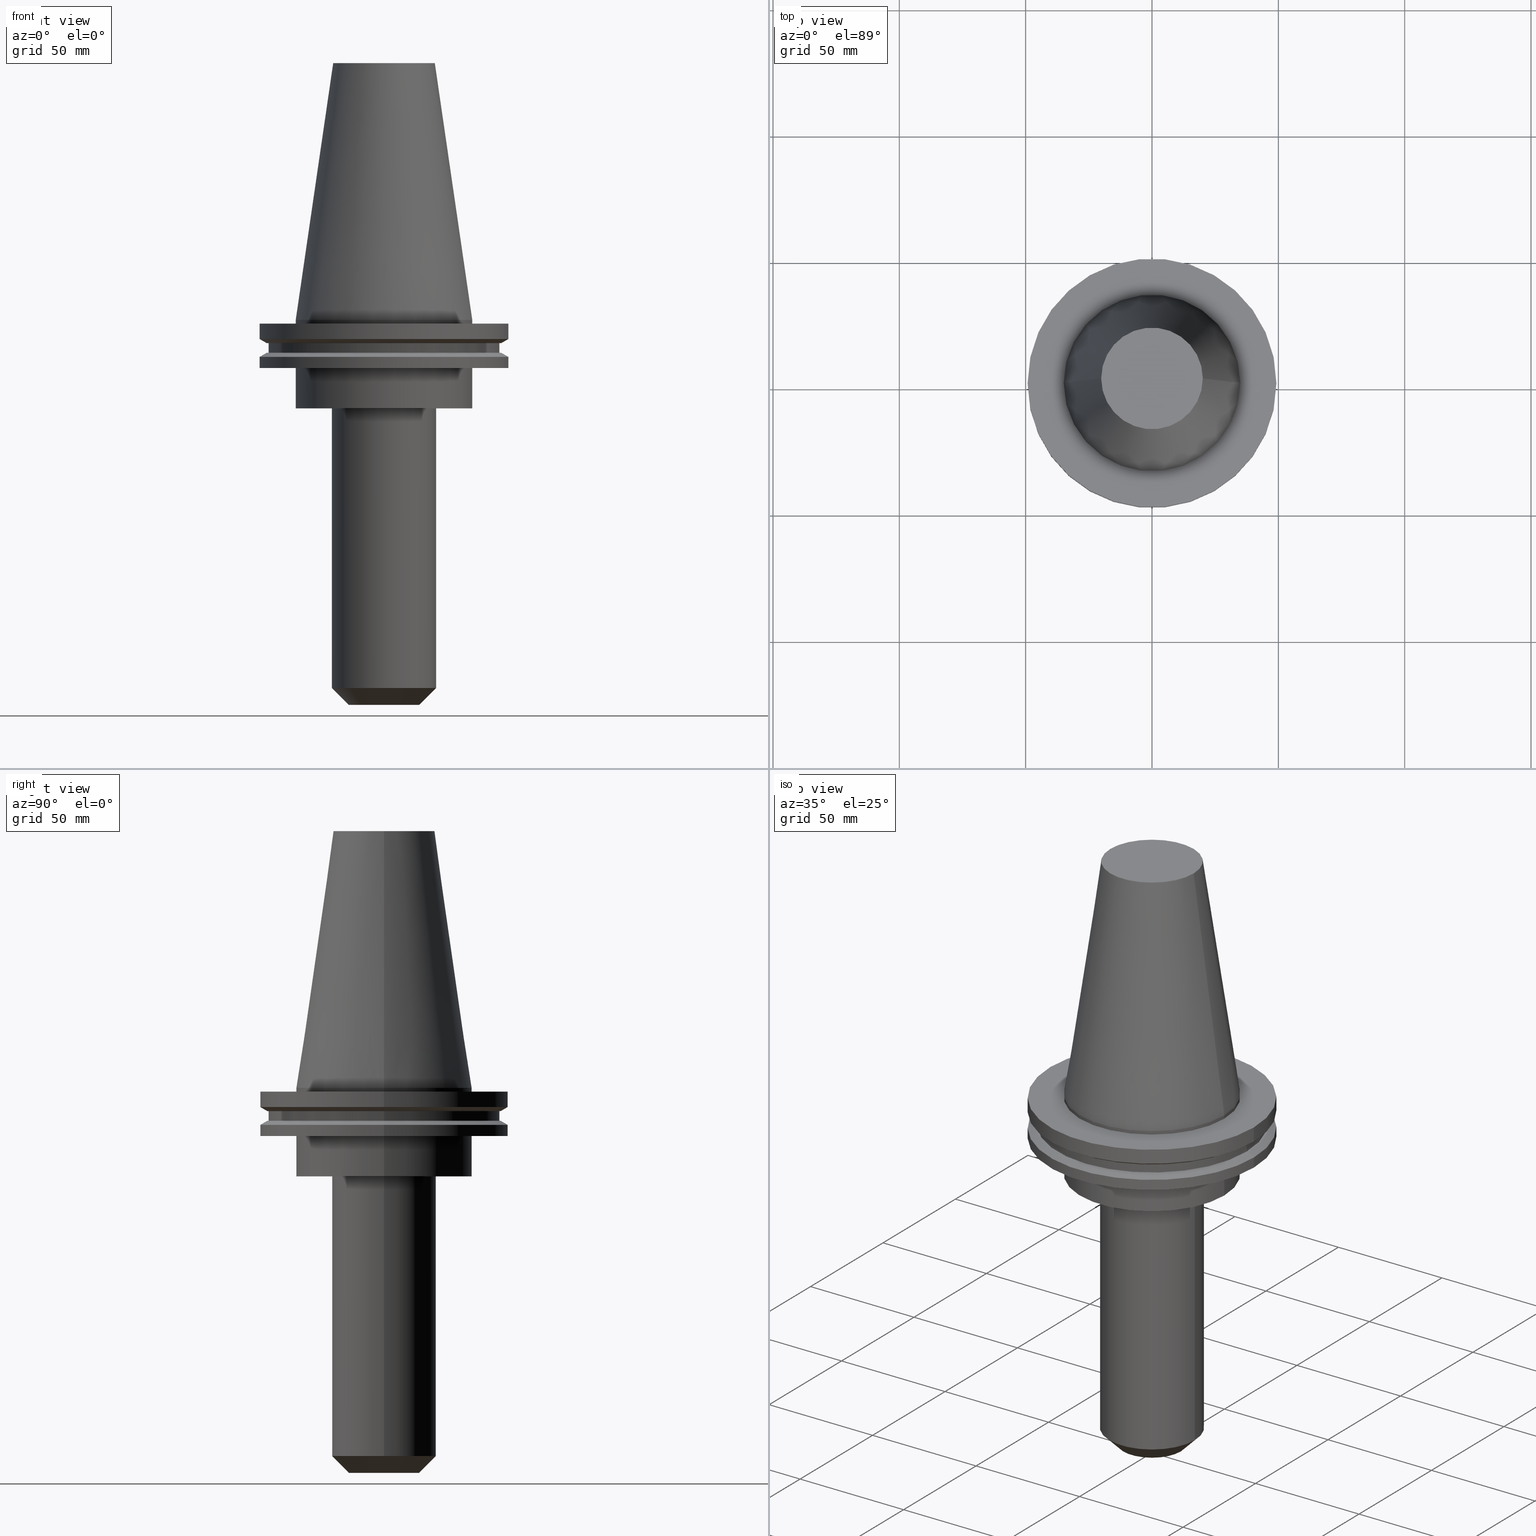
[diagram: canonical four-view strip — front | top / right | iso, engineering-drawing reading convention]
A machine part, canonical four-view strip (front | top / right | iso — engineering-drawing reading convention). The complete STEP part file that produces these views, byte-faithful:
ISO-10303-21;
HEADER;
FILE_DESCRIPTION (( 'STEP AP203' ),
    '1' );
FILE_NAME ('BCV50-EM_625-6.stp',
    '2022-03-03T16:44:40',
    ( '' ),
    ( '' ),
    'SwSTEP 2.0',
    'SolidWorks 2021',
    '' );
FILE_SCHEMA (( 'CONFIG_CONTROL_DESIGN' ));
ENDSEC;

DATA;
#1 = AXIS2_PLACEMENT_3D ( 'NONE', #845, #312, #385 ) ;
#2 = DIRECTION ( 'NONE',  ( 1.000000000000000000, 0.000000000000000000, 0.000000000000000000 ) ) ;
#3 = CARTESIAN_POINT ( 'NONE',  ( 46.43919780457007818, 0.000000000000000000, -9.204999999999991189 ) ) ;
#4 = EDGE_LOOP ( 'NONE', ( #789, #94 ) ) ;
#5 = EDGE_CURVE ( 'NONE', #504, #120, #149, .T. ) ;
#6 = DIRECTION ( 'NONE',  ( -0.000000000000000000, -0.000000000000000000, 1.000000000000000000 ) ) ;
#7 = CARTESIAN_POINT ( 'NONE',  ( 0.000000000000000000, 7.940000000000005720, -152.4000000000000057 ) ) ;
#8 = ADVANCED_FACE ( 'NONE', ( #293 ), #541, .T. ) ;
#9 = DIRECTION ( 'NONE',  ( -0.000000000000000000, -0.000000000000000000, 1.000000000000000000 ) ) ;
#10 = CARTESIAN_POINT ( 'NONE',  ( -45.64500000000000313, 5.589900314708094957E-15, -9.204999999999991189 ) ) ;
#11 = APPROVAL ( #847, 'UNSPECIFIED' ) ;
#12 = AXIS2_PLACEMENT_3D ( 'NONE', #268, #282, #661 ) ;
#13 = CARTESIAN_POINT ( 'NONE',  ( 49.21499999999998920, 0.000000000000000000, 101.5999999999999943 ) ) ;
#14 = DIRECTION ( 'NONE',  ( 0.000000000000000000, 0.000000000000000000, -1.000000000000000000 ) ) ;
#15 = EDGE_CURVE ( 'NONE', #353, #425, #183, .T. ) ;
#16 = DIRECTION ( 'NONE',  ( 1.000000000000000000, 0.000000000000000000, 0.000000000000000000 ) ) ;
#17 = CARTESIAN_POINT ( 'NONE',  ( 0.000000000000000000, 0.000000000000000000, 0.000000000000000000 ) ) ;
#18 = ORIENTED_EDGE ( 'NONE', *, *, #487, .T. ) ;
#19 = CARTESIAN_POINT ( 'NONE',  ( 0.000000000000000000, 0.000000000000000000, -1.499999999999987566 ) ) ;
#20 = CARTESIAN_POINT ( 'NONE',  ( 0.000000000000000000, 49.21499999999999631, -1.499999999999992895 ) ) ;
#21 = ORIENTED_EDGE ( 'NONE', *, *, #325, .F. ) ;
#22 = EDGE_CURVE ( 'NONE', #826, #92, #113, .T. ) ;
#23 = AXIS2_PLACEMENT_3D ( 'NONE', #187, #327, #721 ) ;
#24 = AXIS2_PLACEMENT_3D ( 'NONE', #82, #9, #538 ) ;
#25 = FACE_OUTER_BOUND ( 'NONE', #437, .T. ) ;
#26 =( LENGTH_UNIT ( ) NAMED_UNIT ( * ) SI_UNIT ( .MILLI., .METRE. ) );
#27 = ORIENTED_EDGE ( 'NONE', *, *, #677, .F. ) ;
#28 = CIRCLE ( 'NONE', #511, 13.93999999999998174 ) ;
#29 = CIRCLE ( 'NONE', #349, 49.21499999999998920 ) ;
#30 = VERTEX_POINT ( 'NONE', #849 ) ;
#31 = ADVANCED_FACE ( 'NONE', ( #56 ), #853, .T. ) ;
#32 = DIRECTION ( 'NONE',  ( -0.000000000000000000, -0.000000000000000000, 1.000000000000000000 ) ) ;
#33 = DIRECTION ( 'NONE',  ( 1.000000000000000000, 0.000000000000000000, 0.000000000000000000 ) ) ;
#34 = EDGE_LOOP ( 'NONE', ( #27, #429 ) ) ;
#35 = DIRECTION ( 'NONE',  ( 1.000000000000000000, 0.000000000000000000, 0.000000000000000000 ) ) ;
#36 = ORIENTED_EDGE ( 'NONE', *, *, #667, .F. ) ;
#37 = AXIS2_PLACEMENT_3D ( 'NONE', #17, #166, #746 ) ;
#38 = ORIENTED_EDGE ( 'NONE', *, *, #481, .T. ) ;
#39 = VERTEX_POINT ( 'NONE', #46 ) ;
#40 = DATE_AND_TIME ( #315, #565 ) ;
#41 = ORIENTED_EDGE ( 'NONE', *, *, #510, .T. ) ;
#42 = VERTEX_POINT ( 'NONE', #639 ) ;
#43 = CIRCLE ( 'NONE', #210, 45.64500000000000313 ) ;
#44 = ORIENTED_EDGE ( 'NONE', *, *, #738, .F. ) ;
#45 = SHAPE_DEFINITION_REPRESENTATION ( #592, #81 ) ;
#46 = CARTESIAN_POINT ( 'NONE',  ( 46.43919780457007818, 5.857130358318725715E-15, -13.05499999999999794 ) ) ;
#47 = DIRECTION ( 'NONE',  ( -0.000000000000000000, -0.000000000000000000, 1.000000000000000000 ) ) ;
#48 = PERSON_AND_ORGANIZATION_ROLE ( 'creator' ) ;
#49 = DIRECTION ( 'NONE',  ( 1.000000000000000000, 0.000000000000000000, 0.000000000000000000 ) ) ;
#50 = DIRECTION ( 'NONE',  ( 1.000000000000000000, 0.000000000000000000, 0.000000000000000000 ) ) ;
#51 = CC_DESIGN_PERSON_AND_ORGANIZATION_ASSIGNMENT ( #60, #48, ( #650 ) ) ;
#52 = ORIENTED_EDGE ( 'NONE', *, *, #241, .T. ) ;
#53 = EDGE_CURVE ( 'NONE', #239, #92, #608, .T. ) ;
#54 = CARTESIAN_POINT ( 'NONE',  ( -13.93999999999998174, 1.707157638011408218E-15, -152.4000000000000057 ) ) ;
#55 = APPLICATION_PROTOCOL_DEFINITION ( 'international standard', 'config_control_design', 1994, #329 ) ;
#56 = FACE_OUTER_BOUND ( 'NONE', #243, .T. ) ;
#57 = CARTESIAN_POINT ( 'NONE',  ( 0.000000000000000000, 0.000000000000000000, -9.204999999999991189 ) ) ;
#58 = CONICAL_SURFACE ( 'NONE', #337, 34.92499999999999005, 0.1448138465474119452 ) ;
#59 = ADVANCED_FACE ( 'NONE', ( #117 ), #110, .T. ) ;
#60 = PERSON_AND_ORGANIZATION ( #290, #305 ) ;
#61 = CARTESIAN_POINT ( 'NONE',  ( -49.21499999999998920, 6.027099222003697037E-15, -14.65761014474876944 ) ) ;
#62 = DIRECTION ( 'NONE',  ( 1.000000000000000000, 0.000000000000000000, 0.000000000000000000 ) ) ;
#63 = CARTESIAN_POINT ( 'NONE',  ( 0.000000000000000000, 0.000000000000000000, -13.05499999999999794 ) ) ;
#64 = EDGE_LOOP ( 'NONE', ( #230, #666 ) ) ;
#65 = ADVANCED_FACE ( 'NONE', ( #784 ), #525, .F. ) ;
#66 = DIRECTION ( 'NONE',  ( 0.000000000000000000, -0.000000000000000000, 1.000000000000000000 ) ) ;
#67 = CARTESIAN_POINT ( 'NONE',  ( 0.000000000000000000, 0.000000000000000000, 101.5999999999999943 ) ) ;
#68 = AXIS2_PLACEMENT_3D ( 'NONE', #345, #220, #604 ) ;
#69 = AXIS2_PLACEMENT_3D ( 'NONE', #509, #769, #181 ) ;
#70 = FACE_OUTER_BOUND ( 'NONE', #34, .T. ) ;
#71 = PLANE ( 'NONE',  #344 ) ;
#72 = ORIENTED_EDGE ( 'NONE', *, *, #350, .F. ) ;
#73 = LINE ( 'NONE', #13, #448 ) ;
#74 = DIRECTION ( 'NONE',  ( 0.7071067811865482389, 0.000000000000000000, 0.7071067811865469066 ) ) ;
#75 = CIRCLE ( 'NONE', #37, 34.92499999999999005 ) ;
#76 = CARTESIAN_POINT ( 'NONE',  ( 0.000000000000000000, 0.000000000000000000, -152.4000000000000057 ) ) ;
#77 = DIRECTION ( 'NONE',  ( 0.8660254037844273833, 0.000000000000000000, 0.5000000000000195399 ) ) ;
#78 = LOCAL_TIME ( 10, 44, 40.00000000000000000, #185 ) ;
#79 = EDGE_CURVE ( 'NONE', #593, #164, #506, .T. ) ;
#80 = CIRCLE ( 'NONE', #405, 49.21500000000000341 ) ;
#81 = ADVANCED_BREP_SHAPE_REPRESENTATION ( 'BCV50-EM_625-6', ( #347, #837 ), #616 ) ;
#82 = CARTESIAN_POINT ( 'NONE',  ( 0.000000000000000000, 0.000000000000000000, -152.4000000000000057 ) ) ;
#83 = DIRECTION ( 'NONE',  ( 1.000000000000000000, 0.000000000000000000, 0.000000000000000000 ) ) ;
#84 = ORIENTED_EDGE ( 'NONE', *, *, #738, .T. ) ;
#85 = CARTESIAN_POINT ( 'NONE',  ( 49.21500000000000341, 0.000000000000000000, -7.602389855251287187 ) ) ;
#86 = FACE_OUTER_BOUND ( 'NONE', #625, .T. ) ;
#87 = ORIENTED_EDGE ( 'NONE', *, *, #222, .F. ) ;
#88 = ORIENTED_EDGE ( 'NONE', *, *, #79, .T. ) ;
#89 = PRODUCT_DEFINITION_FORMATION_WITH_SPECIFIED_SOURCE ( 'ANY', '', #719, .NOT_KNOWN. ) ;
#90 = CARTESIAN_POINT ( 'NONE',  ( 0.000000000000000000, 0.000000000000000000, -14.65761014474876944 ) ) ;
#91 = CYLINDRICAL_SURFACE ( 'NONE', #562, 7.939999999999997726 ) ;
#92 = VERTEX_POINT ( 'NONE', #647 ) ;
#93 = AXIS2_PLACEMENT_3D ( 'NONE', #515, #295, #627 ) ;
#94 = ORIENTED_EDGE ( 'NONE', *, *, #438, .T. ) ;
#95 = EDGE_CURVE ( 'NONE', #164, #694, #617, .T. ) ;
#96 = DIRECTION ( 'NONE',  ( 0.000000000000000000, 0.000000000000000000, -1.000000000000000000 ) ) ;
#97 = ORIENTED_EDGE ( 'NONE', *, *, #5, .F. ) ;
#98 = VERTEX_POINT ( 'NONE', #457 ) ;
#99 = ORIENTED_EDGE ( 'NONE', *, *, #796, .T. ) ;
#100 = VECTOR ( 'NONE', #346, 1000.000000000000000 ) ;
#101 = DIRECTION ( 'NONE',  ( 0.000000000000000000, 0.000000000000000000, -1.000000000000000000 ) ) ;
#102 = ORIENTED_EDGE ( 'NONE', *, *, #95, .F. ) ;
#103 = VERTEX_POINT ( 'NONE', #393 ) ;
#104 = PERSON_AND_ORGANIZATION_ROLE ( 'creator' ) ;
#105 = EDGE_LOOP ( 'NONE', ( #299, #343, #612, #354 ) ) ;
#106 = CARTESIAN_POINT ( 'NONE',  ( 0.000000000000000000, 0.000000000000000000, 0.000000000000000000 ) ) ;
#107 = AXIS2_PLACEMENT_3D ( 'NONE', #313, #399, #451 ) ;
#108 = VERTEX_POINT ( 'NONE', #765 ) ;
#109 = PERSON_AND_ORGANIZATION ( #290, #305 ) ;
#110 = CYLINDRICAL_SURFACE ( 'NONE', #404, 34.92499999999999005 ) ;
#111 = LINE ( 'NONE', #833, #276 ) ;
#112 = DIRECTION ( 'NONE',  ( -0.000000000000000000, -0.000000000000000000, 1.000000000000000000 ) ) ;
#113 = LINE ( 'NONE', #258, #670 ) ;
#114 = CARTESIAN_POINT ( 'NONE',  ( -34.92499999999999005, 4.277078946022130098E-15, -1.499999999999987566 ) ) ;
#115 = AXIS2_PLACEMENT_3D ( 'NONE', #807, #813, #427 ) ;
#116 = COORDINATED_UNIVERSAL_TIME_OFFSET ( 6, 0, .BEHIND. ) ;
#117 = FACE_OUTER_BOUND ( 'NONE', #478, .T. ) ;
#118 = DIRECTION ( 'NONE',  ( -0.000000000000000000, -0.000000000000000000, 1.000000000000000000 ) ) ;
#119 = AXIS2_PLACEMENT_3D ( 'NONE', #192, #177, #49 ) ;
#120 = VERTEX_POINT ( 'NONE', #61 ) ;
#121 = CIRCLE ( 'NONE', #527, 20.64000000000000412 ) ;
#122 = COORDINATED_UNIVERSAL_TIME_OFFSET ( 6, 0, .BEHIND. ) ;
#123 = FACE_OUTER_BOUND ( 'NONE', #760, .T. ) ;
#124 = DIRECTION ( 'NONE',  ( -0.8660254037844273833, 1.060575238724893110E-16, 0.5000000000000195399 ) ) ;
#125 = ORIENTED_EDGE ( 'NONE', *, *, #15, .T. ) ;
#126 = ADVANCED_FACE ( 'NONE', ( #588 ), #680, .T. ) ;
#127 = DIRECTION ( 'NONE',  ( -0.000000000000000000, -0.000000000000000000, 1.000000000000000000 ) ) ;
#128 = CARTESIAN_POINT ( 'NONE',  ( 20.64000000000000057, 0.000000000000000000, 0.000000000000000000 ) ) ;
#129 = AXIS2_PLACEMENT_3D ( 'NONE', #273, #214, #146 ) ;
#130 = AXIS2_PLACEMENT_3D ( 'NONE', #20, #101, #417 ) ;
#131 = ADVANCED_FACE ( 'NONE', ( #398 ), #262, .T. ) ;
#132 = FACE_OUTER_BOUND ( 'NONE', #607, .T. ) ;
#133 = PLANE ( 'NONE',  #709 ) ;
#134 = CIRCLE ( 'NONE', #684, 34.92499999999999005 ) ;
#135 = CC_DESIGN_PERSON_AND_ORGANIZATION_ASSIGNMENT ( #453, #838, ( #320 ) ) ;
#136 = CARTESIAN_POINT ( 'NONE',  ( 0.000000000000000000, 0.000000000000000000, 101.5999999999999943 ) ) ;
#137 = DIRECTION ( 'NONE',  ( 0.000000000000000000, 0.000000000000000000, -1.000000000000000000 ) ) ;
#138 = EDGE_CURVE ( 'NONE', #39, #504, #772, .T. ) ;
#139 = ORIENTED_EDGE ( 'NONE', *, *, #459, .F. ) ;
#140 = DIRECTION ( 'NONE',  ( -0.000000000000000000, -0.000000000000000000, 1.000000000000000000 ) ) ;
#141 = CARTESIAN_POINT ( 'NONE',  ( 0.000000000000000000, 0.000000000000000000, 0.000000000000000000 ) ) ;
#142 = ORIENTED_EDGE ( 'NONE', *, *, #597, .T. ) ;
#143 = ADVANCED_FACE ( 'NONE', ( #123 ), #454, .T. ) ;
#144 = LOCAL_TIME ( 10, 44, 40.00000000000000000, #832 ) ;
#145 = DIRECTION ( 'NONE',  ( -0.000000000000000000, -0.000000000000000000, 1.000000000000000000 ) ) ;
#146 = DIRECTION ( 'NONE',  ( 1.000000000000000000, 0.000000000000000000, 0.000000000000000000 ) ) ;
#147 = ORIENTED_EDGE ( 'NONE', *, *, #732, .F. ) ;
#148 = AXIS2_PLACEMENT_3D ( 'NONE', #574, #463, #263 ) ;
#149 = CIRCLE ( 'NONE', #277, 49.21499999999998920 ) ;
#150 = LINE ( 'NONE', #410, #289 ) ;
#151 = AXIS2_PLACEMENT_3D ( 'NONE', #157, #555, #424 ) ;
#152 = ORIENTED_EDGE ( 'NONE', *, *, #524, .T. ) ;
#153 = CARTESIAN_POINT ( 'NONE',  ( 0.000000000000000000, 0.000000000000000000, -145.6999999999999886 ) ) ;
#154 = CARTESIAN_POINT ( 'NONE',  ( 0.000000000000000000, 0.000000000000000000, 0.000000000000000000 ) ) ;
#155 = EDGE_LOOP ( 'NONE', ( #532, #434 ) ) ;
#156 = ORIENTED_EDGE ( 'NONE', *, *, #172, .F. ) ;
#157 = CARTESIAN_POINT ( 'NONE',  ( 0.000000000000000000, 45.64500000000000313, -13.05499999999999794 ) ) ;
#158 = ORIENTED_EDGE ( 'NONE', *, *, #459, .T. ) ;
#159 = AXIS2_PLACEMENT_3D ( 'NONE', #729, #137, #411 ) ;
#160 = EDGE_CURVE ( 'NONE', #361, #120, #150, .T. ) ;
#161 = FACE_OUTER_BOUND ( 'NONE', #626, .T. ) ;
#162 = CARTESIAN_POINT ( 'NONE',  ( 0.000000000000000000, 0.000000000000000000, -1.499999999999987566 ) ) ;
#163 = ORIENTED_EDGE ( 'NONE', *, *, #22, .F. ) ;
#164 = VERTEX_POINT ( 'NONE', #334 ) ;
#165 = CARTESIAN_POINT ( 'NONE',  ( 49.21499999999998920, 0.000000000000000000, -19.04999999999999716 ) ) ;
#166 = DIRECTION ( 'NONE',  ( -0.000000000000000000, -0.000000000000000000, 1.000000000000000000 ) ) ;
#167 = ORIENTED_EDGE ( 'NONE', *, *, #533, .F. ) ;
#168 = CC_DESIGN_PERSON_AND_ORGANIZATION_ASSIGNMENT ( #516, #104, ( #89 ) ) ;
#169 = ORIENTED_EDGE ( 'NONE', *, *, #138, .T. ) ;
#170 = ORIENTED_EDGE ( 'NONE', *, *, #447, .F. ) ;
#171 = ORIENTED_EDGE ( 'NONE', *, *, #408, .T. ) ;
#172 = EDGE_CURVE ( 'NONE', #103, #208, #822, .T. ) ;
#173 = PERSON_AND_ORGANIZATION ( #290, #305 ) ;
#174 = ORIENTED_EDGE ( 'NONE', *, *, #300, .F. ) ;
#175 = AXIS2_PLACEMENT_3D ( 'NONE', #254, #521, #513 ) ;
#176 = ADVANCED_FACE ( 'NONE', ( #70, #725 ), #657, .F. ) ;
#177 = DIRECTION ( 'NONE',  ( -0.000000000000000000, -0.000000000000000000, 1.000000000000000000 ) ) ;
#178 = VECTOR ( 'NONE', #140, 1000.000000000000000 ) ;
#179 = LINE ( 'NONE', #193, #645 ) ;
#180 = AXIS2_PLACEMENT_3D ( 'NONE', #435, #711, #637 ) ;
#181 = DIRECTION ( 'NONE',  ( 1.000000000000000000, 0.000000000000000000, 0.000000000000000000 ) ) ;
#182 = ADVANCED_FACE ( 'NONE', ( #341 ), #211, .T. ) ;
#183 = LINE ( 'NONE', #248, #768 ) ;
#184 = PLANE ( 'NONE',  #148 ) ;
#185 = COORDINATED_UNIVERSAL_TIME_OFFSET ( 6, 0, .BEHIND. ) ;
#186 = EDGE_CURVE ( 'NONE', #265, #694, #475, .T. ) ;
#187 = CARTESIAN_POINT ( 'NONE',  ( 0.000000000000000000, 0.000000000000000000, 0.000000000000000000 ) ) ;
#188 = DIRECTION ( 'NONE',  ( 1.000000000000000000, 0.000000000000000000, 0.000000000000000000 ) ) ;
#189 = AXIS2_PLACEMENT_3D ( 'NONE', #199, #735, #203 ) ;
#190 = ORIENTED_EDGE ( 'NONE', *, *, #53, .F. ) ;
#191 = DATE_AND_TIME ( #778, #78 ) ;
#192 = CARTESIAN_POINT ( 'NONE',  ( 0.000000000000000000, 0.000000000000000000, -152.4000000000000057 ) ) ;
#193 = CARTESIAN_POINT ( 'NONE',  ( -46.43919780457007818, 5.687161494633754392E-15, -9.204999999999991189 ) ) ;
#194 = CC_DESIGN_DATE_AND_TIME_ASSIGNMENT ( #191, #326, ( #650 ) ) ;
#195 = CIRCLE ( 'NONE', #68, 7.940000000000005720 ) ;
#196 = VERTEX_POINT ( 'NONE', #800 ) ;
#197 = EDGE_CURVE ( 'NONE', #92, #239, #568, .T. ) ;
#198 = CONICAL_SURFACE ( 'NONE', #375, 49.21499999999998920, 1.047197551196554333 ) ;
#199 = CARTESIAN_POINT ( 'NONE',  ( 0.000000000000000000, 0.000000000000000000, -35.04999999999999716 ) ) ;
#200 = ORIENTED_EDGE ( 'NONE', *, *, #251, .T. ) ;
#201 = EDGE_CURVE ( 'NONE', #827, #761, #594, .T. ) ;
#202 = DIRECTION ( 'NONE',  ( 0.000000000000000000, -0.000000000000000000, 1.000000000000000000 ) ) ;
#203 = DIRECTION ( 'NONE',  ( 1.000000000000000000, 0.000000000000000000, 0.000000000000000000 ) ) ;
#204 = VERTEX_POINT ( 'NONE', #530 ) ;
#205 = APPROVAL ( #710, 'UNSPECIFIED' ) ;
#206 = DIRECTION ( 'NONE',  ( -0.000000000000000000, -0.000000000000000000, 1.000000000000000000 ) ) ;
#207 = LINE ( 'NONE', #128, #418 ) ;
#208 = VERTEX_POINT ( 'NONE', #599 ) ;
#209 = APPLICATION_CONTEXT ( 'configuration controlled 3d designs of mechanical parts and assemblies' ) ;
#210 = AXIS2_PLACEMENT_3D ( 'NONE', #63, #762, #648 ) ;
#211 = CONICAL_SURFACE ( 'NONE', #307, 13.93999999999998174, 0.7853981633974491672 ) ;
#212 = CIRCLE ( 'NONE', #324, 34.92499999999999005 ) ;
#213 = CARTESIAN_POINT ( 'NONE',  ( -34.92499999999999005, 4.277078946022130098E-15, 101.5999999999999943 ) ) ;
#214 = DIRECTION ( 'NONE',  ( -0.000000000000000000, -0.000000000000000000, 1.000000000000000000 ) ) ;
#215 = ORIENTED_EDGE ( 'NONE', *, *, #278, .T. ) ;
#216 = DIRECTION ( 'NONE',  ( 1.000000000000000000, 0.000000000000000000, 0.000000000000000000 ) ) ;
#217 = CARTESIAN_POINT ( 'NONE',  ( 0.000000000000000000, 0.000000000000000000, -14.65761014474876944 ) ) ;
#218 = ORIENTED_EDGE ( 'NONE', *, *, #186, .T. ) ;
#219 = CIRCLE ( 'NONE', #129, 45.64500000000000313 ) ;
#220 = DIRECTION ( 'NONE',  ( -0.000000000000000000, -0.000000000000000000, 1.000000000000000000 ) ) ;
#221 =( NAMED_UNIT ( * ) SI_UNIT ( $, .STERADIAN. ) SOLID_ANGLE_UNIT ( ) );
#222 = EDGE_CURVE ( 'NONE', #208, #103, #195, .T. ) ;
#223 = VECTOR ( 'NONE', #272, 1000.000000000000000 ) ;
#224 = CIRCLE ( 'NONE', #93, 49.21499999999999631 ) ;
#225 = DIRECTION ( 'NONE',  ( -0.7071067811865482389, 8.659560562354941486E-17, 0.7071067811865469066 ) ) ;
#226 = CARTESIAN_POINT ( 'NONE',  ( 0.000000000000000000, 0.000000000000000000, -14.65761014474876944 ) ) ;
#227 = VERTEX_POINT ( 'NONE', #668 ) ;
#228 = CARTESIAN_POINT ( 'NONE',  ( 0.000000000000000000, 0.000000000000000000, -13.05499999999999794 ) ) ;
#229 = FACE_BOUND ( 'NONE', #4, .T. ) ;
#230 = ORIENTED_EDGE ( 'NONE', *, *, #477, .F. ) ;
#231 = DIRECTION ( 'NONE',  ( -0.000000000000000000, -0.000000000000000000, 1.000000000000000000 ) ) ;
#232 = EDGE_LOOP ( 'NONE', ( #502, #814, #190, #644 ) ) ;
#233 = AXIS2_PLACEMENT_3D ( 'NONE', #217, #360, #421 ) ;
#234 = DIRECTION ( 'NONE',  ( -0.000000000000000000, -0.000000000000000000, 1.000000000000000000 ) ) ;
#235 = CARTESIAN_POINT ( 'NONE',  ( 0.000000000000000000, 0.000000000000000000, -19.04999999999999716 ) ) ;
#236 = EDGE_LOOP ( 'NONE', ( #372, #559, #548, #508 ) ) ;
#237 = AXIS2_PLACEMENT_3D ( 'NONE', #136, #545, #653 ) ;
#238 = DIRECTION ( 'NONE',  ( 1.000000000000000000, 0.000000000000000000, 0.000000000000000000 ) ) ;
#239 = VERTEX_POINT ( 'NONE', #798 ) ;
#240 = AXIS2_PLACEMENT_3D ( 'NONE', #583, #234, #366 ) ;
#241 = EDGE_CURVE ( 'NONE', #419, #504, #73, .T. ) ;
#242 = ORIENTED_EDGE ( 'NONE', *, *, #340, .T. ) ;
#243 = EDGE_LOOP ( 'NONE', ( #369, #242, #125, #491 ) ) ;
#244 = MECHANICAL_CONTEXT ( 'NONE', #209, 'mechanical' ) ;
#245 = ORIENTED_EDGE ( 'NONE', *, *, #422, .T. ) ;
#246 = ORIENTED_EDGE ( 'NONE', *, *, #436, .T. ) ;
#247 = EDGE_LOOP ( 'NONE', ( #147, #576 ) ) ;
#248 = CARTESIAN_POINT ( 'NONE',  ( 49.21499999999999631, 0.000000000000000000, 101.5999999999999943 ) ) ;
#249 = FACE_OUTER_BOUND ( 'NONE', #660, .T. ) ;
#250 = EDGE_LOOP ( 'NONE', ( #460, #751 ) ) ;
#251 = EDGE_CURVE ( 'NONE', #567, #164, #351, .T. ) ;
#252 = DIRECTION ( 'NONE',  ( -0.000000000000000000, -0.000000000000000000, 1.000000000000000000 ) ) ;
#253 = CALENDAR_DATE ( 2022, 3, 3 ) ;
#254 = CARTESIAN_POINT ( 'NONE',  ( 0.000000000000000000, 0.000000000000000000, 101.5999999999999943 ) ) ;
#255 = CARTESIAN_POINT ( 'NONE',  ( 0.000000000000000000, 0.000000000000000000, 101.5999999999999943 ) ) ;
#256 = DIRECTION ( 'NONE',  ( 1.000000000000000000, 0.000000000000000000, 0.000000000000000000 ) ) ;
#257 = DATE_AND_TIME ( #716, #274 ) ;
#258 = CARTESIAN_POINT ( 'NONE',  ( -34.92499999999999716, 4.277078946022130887E-15, 101.5999999999999943 ) ) ;
#259 = CYLINDRICAL_SURFACE ( 'NONE', #828, 20.64000000000000057 ) ;
#260 = AXIS2_PLACEMENT_3D ( 'NONE', #507, #766, #50 ) ;
#261 = APPROVAL_ROLE ( '' ) ;
#262 = CYLINDRICAL_SURFACE ( 'NONE', #175, 45.64500000000000313 ) ;
#263 = DIRECTION ( 'NONE',  ( -1.000000000000000000, 0.000000000000000000, -0.000000000000000000 ) ) ;
#264 = AXIS2_PLACEMENT_3D ( 'NONE', #352, #654, #722 ) ;
#265 = VERTEX_POINT ( 'NONE', #730 ) ;
#266 = CARTESIAN_POINT ( 'NONE',  ( 0.000000000000000000, 0.000000000000000000, 101.5999999999999943 ) ) ;
#267 = DIRECTION ( 'NONE',  ( 0.1443082272672999988, 1.767266086135277066E-17, -0.9895327864921755756 ) ) ;
#268 = CARTESIAN_POINT ( 'NONE',  ( 0.000000000000000000, 0.000000000000000000, -19.04999999999999716 ) ) ;
#269 = CARTESIAN_POINT ( 'NONE',  ( -20.10819343178871321, 0.000000000000000000, 101.5999999999999801 ) ) ;
#270 = DIRECTION ( 'NONE',  ( -0.000000000000000000, -0.000000000000000000, 1.000000000000000000 ) ) ;
#271 = CARTESIAN_POINT ( 'NONE',  ( 0.000000000000000000, 0.000000000000000000, -35.04999999999999716 ) ) ;
#272 = DIRECTION ( 'NONE',  ( -0.000000000000000000, -0.000000000000000000, 1.000000000000000000 ) ) ;
#273 = CARTESIAN_POINT ( 'NONE',  ( 0.000000000000000000, 0.000000000000000000, -9.204999999999991189 ) ) ;
#274 = LOCAL_TIME ( 10, 44, 40.00000000000000000, #116 ) ;
#275 = UNCERTAINTY_MEASURE_WITH_UNIT (LENGTH_MEASURE( 1.000000000000000082E-05 ), #26, 'distance_accuracy_value', 'NONE');
#276 = VECTOR ( 'NONE', #381, 1000.000000000000000 ) ;
#277 = AXIS2_PLACEMENT_3D ( 'NONE', #226, #423, #486 ) ;
#278 = EDGE_CURVE ( 'NONE', #196, #239, #406, .T. ) ;
#279 = CARTESIAN_POINT ( 'NONE',  ( 0.000000000000000000, 49.21499999999998920, -19.04999999999999716 ) ) ;
#280 = CARTESIAN_POINT ( 'NONE',  ( 0.000000000000000000, 34.92499999999999716, -35.04999999999999716 ) ) ;
#281 = ADVANCED_FACE ( 'NONE', ( #132, #479 ), #787, .F. ) ;
#282 = DIRECTION ( 'NONE',  ( -0.000000000000000000, -0.000000000000000000, 1.000000000000000000 ) ) ;
#283 = EDGE_CURVE ( 'NONE', #633, #808, #28, .T. ) ;
#284 = ORIENTED_EDGE ( 'NONE', *, *, #775, .T. ) ;
#285 = CIRCLE ( 'NONE', #749, 46.43919780457007818 ) ;
#286 = CARTESIAN_POINT ( 'NONE',  ( -49.21499999999999631, 6.027099222003697826E-15, 101.5999999999999943 ) ) ;
#287 = APPLICATION_PROTOCOL_DEFINITION ( 'international standard', 'config_control_design', 1994, #209 ) ;
#288 = ORIENTED_EDGE ( 'NONE', *, *, #533, .T. ) ;
#289 = VECTOR ( 'NONE', #609, 1000.000000000000000 ) ;
#290 = PERSON ( 'UNSPECIFIED', 'UNSPECIFIED', 'UNSPECIFIED', ('UNSPECIFIED'), ('UNSPECIFIED'), ('UNSPECIFIED') ) ;
#291 = FACE_BOUND ( 'NONE', #64, .T. ) ;
#292 = CARTESIAN_POINT ( 'NONE',  ( 0.000000000000000000, 46.43919780457007818, -9.204999999999998295 ) ) ;
#293 = FACE_OUTER_BOUND ( 'NONE', #736, .T. ) ;
#294 = ADVANCED_FACE ( 'NONE', ( #739 ), #468, .T. ) ;
#295 = DIRECTION ( 'NONE',  ( -0.000000000000000000, -0.000000000000000000, 1.000000000000000000 ) ) ;
#296 = DIRECTION ( 'NONE',  ( 1.000000000000000000, 0.000000000000000000, 0.000000000000000000 ) ) ;
#297 = ORIENTED_EDGE ( 'NONE', *, *, #201, .T. ) ;
#298 = CIRCLE ( 'NONE', #577, 20.10819343178871321 ) ;
#299 = ORIENTED_EDGE ( 'NONE', *, *, #542, .F. ) ;
#300 = EDGE_CURVE ( 'NONE', #593, #621, #622, .T. ) ;
#301 = CIRCLE ( 'NONE', #264, 7.939999999999997726 ) ;
#302 = DIRECTION ( 'NONE',  ( -0.8660254037844169472, 0.000000000000000000, -0.5000000000000375255 ) ) ;
#303 = CARTESIAN_POINT ( 'NONE',  ( -45.64500000000000313, 5.589900314708094957E-15, -13.05499999999999794 ) ) ;
#304 = ORIENTED_EDGE ( 'NONE', *, *, #318, .F. ) ;
#305 = ORGANIZATION ( 'UNSPECIFIED', 'UNSPECIFIED', '' ) ;
#306 = ORIENTED_EDGE ( 'NONE', *, *, #422, .F. ) ;
#307 = AXIS2_PLACEMENT_3D ( 'NONE', #76, #145, #543 ) ;
#308 = PERSON_AND_ORGANIZATION_ROLE ( 'design_owner' ) ;
#309 = EDGE_LOOP ( 'NONE', ( #368, #805 ) ) ;
#310 = ORIENTED_EDGE ( 'NONE', *, *, #355, .T. ) ;
#311 = ORIENTED_EDGE ( 'NONE', *, *, #325, .T. ) ;
#312 = DIRECTION ( 'NONE',  ( -0.000000000000000000, -0.000000000000000000, 1.000000000000000000 ) ) ;
#313 = CARTESIAN_POINT ( 'NONE',  ( 0.000000000000000000, 0.000000000000000000, -13.05499999999999794 ) ) ;
#314 = ORIENTED_EDGE ( 'NONE', *, *, #510, .F. ) ;
#315 = CALENDAR_DATE ( 2022, 3, 3 ) ;
#316 = DIRECTION ( 'NONE',  ( -0.000000000000000000, -0.000000000000000000, 1.000000000000000000 ) ) ;
#317 = EDGE_LOOP ( 'NONE', ( #674, #638, #246, #777 ) ) ;
#318 = EDGE_CURVE ( 'NONE', #120, #504, #842, .T. ) ;
#319 = CARTESIAN_POINT ( 'NONE',  ( -49.21499999999998920, 6.027099222003697037E-15, -19.04999999999999716 ) ) ;
#320 = SECURITY_CLASSIFICATION ( '', '', #829 ) ;
#321 = APPROVAL_ROLE ( '' ) ;
#322 = DIRECTION ( 'NONE',  ( -0.000000000000000000, -0.000000000000000000, 1.000000000000000000 ) ) ;
#323 = CYLINDRICAL_SURFACE ( 'NONE', #630, 34.92499999999999005 ) ;
#324 = AXIS2_PLACEMENT_3D ( 'NONE', #705, #687, #383 ) ;
#325 = EDGE_CURVE ( 'NONE', #567, #265, #134, .T. ) ;
#326 = DATE_TIME_ROLE ( 'creation_date' ) ;
#327 = DIRECTION ( 'NONE',  ( -0.000000000000000000, -0.000000000000000000, 1.000000000000000000 ) ) ;
#328 = CARTESIAN_POINT ( 'NONE',  ( 49.21499999999998920, 0.000000000000000000, -14.65761014474876944 ) ) ;
#329 = APPLICATION_CONTEXT ( 'configuration controlled 3d designs of mechanical parts and assemblies' ) ;
#330 = ORIENTED_EDGE ( 'NONE', *, *, #241, .F. ) ;
#331 = EDGE_CURVE ( 'NONE', #108, #98, #359, .T. ) ;
#332 = FACE_OUTER_BOUND ( 'NONE', #695, .T. ) ;
#333 = CONICAL_SURFACE ( 'NONE', #233, 49.21499999999998920, 1.047197551196554333 ) ;
#334 = CARTESIAN_POINT ( 'NONE',  ( -34.92499999999999005, 0.000000000000000000, 0.000000000000000000 ) ) ;
#335 = DIRECTION ( 'NONE',  ( 1.000000000000000000, 0.000000000000000000, 0.000000000000000000 ) ) ;
#336 = ORIENTED_EDGE ( 'NONE', *, *, #438, .F. ) ;
#337 = AXIS2_PLACEMENT_3D ( 'NONE', #812, #806, #494 ) ;
#338 = CARTESIAN_POINT ( 'NONE',  ( 34.92499999999999716, 0.000000000000000000, 101.5999999999999943 ) ) ;
#339 = DIRECTION ( 'NONE',  ( 1.000000000000000000, 0.000000000000000000, 0.000000000000000000 ) ) ;
#340 = EDGE_CURVE ( 'NONE', #108, #353, #80, .T. ) ;
#341 = FACE_OUTER_BOUND ( 'NONE', #236, .T. ) ;
#342 = DIRECTION ( 'NONE',  ( -0.000000000000000000, -0.000000000000000000, 1.000000000000000000 ) ) ;
#343 = ORIENTED_EDGE ( 'NONE', *, *, #501, .T. ) ;
#344 = AXIS2_PLACEMENT_3D ( 'NONE', #7, #792, #799 ) ;
#345 = CARTESIAN_POINT ( 'NONE',  ( 0.000000000000000000, 0.000000000000000000, -152.4000000000000057 ) ) ;
#346 = DIRECTION ( 'NONE',  ( -0.000000000000000000, -0.000000000000000000, 1.000000000000000000 ) ) ;
#347 = MANIFOLD_SOLID_BREP ( 'EM', #686 ) ;
#348 = ORIENTED_EDGE ( 'NONE', *, *, #95, .T. ) ;
#349 = AXIS2_PLACEMENT_3D ( 'NONE', #614, #420, #675 ) ;
#350 = EDGE_CURVE ( 'NONE', #425, #98, #224, .T. ) ;
#351 = LINE ( 'NONE', #213, #782 ) ;
#352 = CARTESIAN_POINT ( 'NONE',  ( 0.000000000000000000, 0.000000000000000000, -35.04999999999999716 ) ) ;
#353 = VERTEX_POINT ( 'NONE', #85 ) ;
#354 = ORIENTED_EDGE ( 'NONE', *, *, #732, .T. ) ;
#355 = EDGE_CURVE ( 'NONE', #265, #567, #212, .T. ) ;
#356 = DIRECTION ( 'NONE',  ( -0.000000000000000000, -0.000000000000000000, 1.000000000000000000 ) ) ;
#357 = ORIENTED_EDGE ( 'NONE', *, *, #848, .T. ) ;
#358 = AXIS2_PLACEMENT_3D ( 'NONE', #271, #469, #83 ) ;
#359 = LINE ( 'NONE', #286, #430 ) ;
#360 = DIRECTION ( 'NONE',  ( 0.000000000000000000, 0.000000000000000000, -1.000000000000000000 ) ) ;
#361 = VERTEX_POINT ( 'NONE', #319 ) ;
#362 = AXIS2_PLACEMENT_3D ( 'NONE', #402, #270, #534 ) ;
#363 = CARTESIAN_POINT ( 'NONE',  ( 0.000000000000000000, 0.000000000000000000, -7.602389855251287187 ) ) ;
#364 = PLANE ( 'NONE',  #130 ) ;
#365 = ORIENTED_EDGE ( 'NONE', *, *, #487, .F. ) ;
#366 = DIRECTION ( 'NONE',  ( 1.000000000000000000, 0.000000000000000000, 0.000000000000000000 ) ) ;
#367 =( NAMED_UNIT ( * ) PLANE_ANGLE_UNIT ( ) SI_UNIT ( $, .RADIAN. ) );
#368 = ORIENTED_EDGE ( 'NONE', *, *, #350, .T. ) ;
#369 = ORIENTED_EDGE ( 'NONE', *, *, #331, .F. ) ;
#370 = AXIS2_PLACEMENT_3D ( 'NONE', #553, #825, #483 ) ;
#371 = FACE_OUTER_BOUND ( 'NONE', #232, .T. ) ;
#372 = ORIENTED_EDGE ( 'NONE', *, *, #408, .F. ) ;
#373 = ORIENTED_EDGE ( 'NONE', *, *, #300, .T. ) ;
#374 = ADVANCED_FACE ( 'NONE', ( #431 ), #198, .T. ) ;
#375 = AXIS2_PLACEMENT_3D ( 'NONE', #90, #96, #557 ) ;
#376 = ORIENTED_EDGE ( 'NONE', *, *, #197, .F. ) ;
#377 = CARTESIAN_POINT ( 'NONE',  ( 0.000000000000000000, 0.000000000000000000, -35.04999999999999716 ) ) ;
#378 = DIRECTION ( 'NONE',  ( 1.000000000000000000, 0.000000000000000000, 0.000000000000000000 ) ) ;
#379 = EDGE_CURVE ( 'NONE', #446, #39, #715, .T. ) ;
#380 = CARTESIAN_POINT ( 'NONE',  ( 0.000000000000000000, 0.000000000000000000, 0.000000000000000000 ) ) ;
#381 = DIRECTION ( 'NONE',  ( -0.000000000000000000, -0.000000000000000000, 1.000000000000000000 ) ) ;
#382 = ORIENTED_EDGE ( 'NONE', *, *, #542, .T. ) ;
#383 = DIRECTION ( 'NONE',  ( 1.000000000000000000, 0.000000000000000000, 0.000000000000000000 ) ) ;
#384 = AXIS2_PLACEMENT_3D ( 'NONE', #57, #591, #386 ) ;
#385 = DIRECTION ( 'NONE',  ( 1.000000000000000000, 0.000000000000000000, 0.000000000000000000 ) ) ;
#386 = DIRECTION ( 'NONE',  ( 1.000000000000000000, 0.000000000000000000, 0.000000000000000000 ) ) ;
#387 = APPROVAL ( #462, 'UNSPECIFIED' ) ;
#388 = EDGE_CURVE ( 'NONE', #820, #704, #121, .T. ) ;
#389 = AXIS2_PLACEMENT_3D ( 'NONE', #380, #127, #651 ) ;
#390 = CC_DESIGN_APPROVAL ( #11, ( #320 ) ) ;
#391 = DATE_AND_TIME ( #632, #855 ) ;
#392 = VECTOR ( 'NONE', #581, 1000.000000000000000 ) ;
#393 = CARTESIAN_POINT ( 'NONE',  ( -7.940000000000005720, 9.723695585229993009E-16, -152.4000000000000057 ) ) ;
#394 = CARTESIAN_POINT ( 'NONE',  ( 0.000000000000000000, 0.000000000000000000, -145.6999999999999886 ) ) ;
#395 = AXIS2_PLACEMENT_3D ( 'NONE', #485, #252, #672 ) ;
#396 = DESIGN_CONTEXT ( 'detailed design', #329, 'design' ) ;
#397 = ADVANCED_FACE ( 'NONE', ( #774 ), #58, .T. ) ;
#398 = FACE_OUTER_BOUND ( 'NONE', #655, .T. ) ;
#399 = DIRECTION ( 'NONE',  ( -0.000000000000000000, -0.000000000000000000, 1.000000000000000000 ) ) ;
#400 = DIRECTION ( 'NONE',  ( -0.000000000000000000, -0.000000000000000000, 1.000000000000000000 ) ) ;
#401 = CC_DESIGN_APPROVAL ( #205, ( #650 ) ) ;
#402 = CARTESIAN_POINT ( 'NONE',  ( 0.000000000000000000, 0.000000000000000000, 101.5999999999999943 ) ) ;
#403 = DIRECTION ( 'NONE',  ( -1.000000000000000000, 0.000000000000000000, 0.000000000000000000 ) ) ;
#404 = AXIS2_PLACEMENT_3D ( 'NONE', #517, #464, #702 ) ;
#405 = AXIS2_PLACEMENT_3D ( 'NONE', #363, #681, #752 ) ;
#406 = LINE ( 'NONE', #338, #178 ) ;
#407 = LINE ( 'NONE', #662, #505 ) ;
#408 = EDGE_CURVE ( 'NONE', #633, #704, #816, .T. ) ;
#409 = EDGE_LOOP ( 'NONE', ( #794, #21 ) ) ;
#410 = CARTESIAN_POINT ( 'NONE',  ( -49.21499999999998920, 6.027099222003697037E-15, 101.5999999999999943 ) ) ;
#411 = DIRECTION ( 'NONE',  ( 1.000000000000000000, 0.000000000000000000, 0.000000000000000000 ) ) ;
#412 = CONICAL_SURFACE ( 'NONE', #384, 46.43919780457007818, 1.047197551196575205 ) ;
#413 = CARTESIAN_POINT ( 'NONE',  ( -45.64500000000000313, 5.589900314708094957E-15, 101.5999999999999943 ) ) ;
#414 = CARTESIAN_POINT ( 'NONE',  ( -7.939999999999997726, 9.723695585229981176E-16, 0.000000000000000000 ) ) ;
#415 = AXIS2_PLACEMENT_3D ( 'NONE', #394, #652, #854 ) ;
#416 = CARTESIAN_POINT ( 'NONE',  ( 0.000000000000000000, 0.000000000000000000, -14.65761014474876944 ) ) ;
#417 = DIRECTION ( 'NONE',  ( -1.000000000000000000, 0.000000000000000000, -0.000000000000000000 ) ) ;
#418 = VECTOR ( 'NONE', #480, 1000.000000000000000 ) ;
#419 = VERTEX_POINT ( 'NONE', #165 ) ;
#420 = DIRECTION ( 'NONE',  ( -0.000000000000000000, -0.000000000000000000, 1.000000000000000000 ) ) ;
#421 = DIRECTION ( 'NONE',  ( -1.000000000000000000, 0.000000000000000000, 0.000000000000000000 ) ) ;
#422 = EDGE_CURVE ( 'NONE', #353, #108, #646, .T. ) ;
#423 = DIRECTION ( 'NONE',  ( -0.000000000000000000, -0.000000000000000000, 1.000000000000000000 ) ) ;
#424 = DIRECTION ( 'NONE',  ( -1.000000000000000000, 0.000000000000000000, -0.000000000000000000 ) ) ;
#425 = VERTEX_POINT ( 'NONE', #618 ) ;
#426 = DIRECTION ( 'NONE',  ( 1.000000000000000000, 0.000000000000000000, 0.000000000000000000 ) ) ;
#427 = DIRECTION ( 'NONE',  ( 1.000000000000000000, 0.000000000000000000, 0.000000000000000000 ) ) ;
#428 = EDGE_LOOP ( 'NONE', ( #613, #18, #306, #441 ) ) ;
#429 = ORIENTED_EDGE ( 'NONE', *, *, #481, .F. ) ;
#430 = VECTOR ( 'NONE', #32, 1000.000000000000000 ) ;
#431 = FACE_OUTER_BOUND ( 'NONE', #317, .T. ) ;
#432 = DIRECTION ( 'NONE',  ( 1.000000000000000000, 0.000000000000000000, 0.000000000000000000 ) ) ;
#433 = EDGE_LOOP ( 'NONE', ( #284, #171, #503, #685 ) ) ;
#434 = ORIENTED_EDGE ( 'NONE', *, *, #197, .T. ) ;
#435 = CARTESIAN_POINT ( 'NONE',  ( 0.000000000000000000, 0.000000000000000000, -13.05499999999999794 ) ) ;
#436 = EDGE_CURVE ( 'NONE', #446, #120, #843, .T. ) ;
#437 = EDGE_LOOP ( 'NONE', ( #683, #382, #754, #747 ) ) ;
#438 = EDGE_CURVE ( 'NONE', #761, #204, #449, .T. ) ;
#439 = DIRECTION ( 'NONE',  ( 0.000000000000000000, -0.000000000000000000, 1.000000000000000000 ) ) ;
#440 = ORIENTED_EDGE ( 'NONE', *, *, #763, .F. ) ;
#441 = ORIENTED_EDGE ( 'NONE', *, *, #691, .F. ) ;
#442 = ORIENTED_EDGE ( 'NONE', *, *, #5, .T. ) ;
#443 = ADVANCED_FACE ( 'NONE', ( #25 ), #745, .T. ) ;
#444 = VERTEX_POINT ( 'NONE', #552 ) ;
#445 = LINE ( 'NONE', #699, #795 ) ;
#446 = VERTEX_POINT ( 'NONE', #488 ) ;
#447 = EDGE_CURVE ( 'NONE', #30, #490, #596, .T. ) ;
#448 = VECTOR ( 'NONE', #482, 1000.000000000000000 ) ;
#449 = CIRCLE ( 'NONE', #395, 45.64500000000000313 ) ;
#450 = DIRECTION ( 'NONE',  ( 1.000000000000000000, 0.000000000000000000, 0.000000000000000000 ) ) ;
#451 = DIRECTION ( 'NONE',  ( 1.000000000000000000, 0.000000000000000000, 0.000000000000000000 ) ) ;
#452 = CARTESIAN_POINT ( 'NONE',  ( 0.000000000000000000, 0.000000000000000000, -35.04999999999999716 ) ) ;
#453 = PERSON_AND_ORGANIZATION ( #290, #305 ) ;
#454 = CYLINDRICAL_SURFACE ( 'NONE', #237, 49.21499999999998920 ) ;
#455 = LINE ( 'NONE', #707, #392 ) ;
#456 = CIRCLE ( 'NONE', #189, 34.92499999999999716 ) ;
#457 = CARTESIAN_POINT ( 'NONE',  ( -49.21499999999999631, 6.027099222003697826E-15, -1.499999999999987566 ) ) ;
#458 = FACE_OUTER_BOUND ( 'NONE', #428, .T. ) ;
#459 = EDGE_CURVE ( 'NONE', #419, #361, #29, .T. ) ;
#460 = ORIENTED_EDGE ( 'NONE', *, *, #775, .F. ) ;
#461 = AXIS2_PLACEMENT_3D ( 'NONE', #601, #66, #2 ) ;
#462 = APPROVAL_STATUS ( 'not_yet_approved' ) ;
#463 = DIRECTION ( 'NONE',  ( 0.000000000000000000, 0.000000000000000000, -1.000000000000000000 ) ) ;
#464 = DIRECTION ( 'NONE',  ( -0.000000000000000000, -0.000000000000000000, 1.000000000000000000 ) ) ;
#465 = CARTESIAN_POINT ( 'NONE',  ( 34.92499999999999005, 4.277078946022130098E-15, 0.000000000000000000 ) ) ;
#466 = ORIENTED_EDGE ( 'NONE', *, *, #493, .F. ) ;
#467 = ADVANCED_FACE ( 'NONE', ( #291, #161 ), #549, .F. ) ;
#468 = CYLINDRICAL_SURFACE ( 'NONE', #362, 49.21499999999998920 ) ;
#469 = DIRECTION ( 'NONE',  ( 0.000000000000000000, 0.000000000000000000, -1.000000000000000000 ) ) ;
#470 = AXIS2_PLACEMENT_3D ( 'NONE', #67, #400, #335 ) ;
#471 = DIRECTION ( 'NONE',  ( 1.000000000000000000, 0.000000000000000000, 0.000000000000000000 ) ) ;
#472 = CYLINDRICAL_SURFACE ( 'NONE', #470, 45.64500000000000313 ) ;
#473 = AXIS2_PLACEMENT_3D ( 'NONE', #791, #206, #471 ) ;
#474 = CIRCLE ( 'NONE', #415, 20.64000000000000412 ) ;
#475 = LINE ( 'NONE', #664, #620 ) ;
#476 = LINE ( 'NONE', #665, #561 ) ;
#477 = EDGE_CURVE ( 'NONE', #42, #827, #701, .T. ) ;
#478 = EDGE_LOOP ( 'NONE', ( #310, #200, #550, #713 ) ) ;
#479 = FACE_BOUND ( 'NONE', #155, .T. ) ;
#480 = DIRECTION ( 'NONE',  ( -0.000000000000000000, -0.000000000000000000, 1.000000000000000000 ) ) ;
#481 = EDGE_CURVE ( 'NONE', #826, #196, #659, .T. ) ;
#482 = DIRECTION ( 'NONE',  ( -0.000000000000000000, -0.000000000000000000, 1.000000000000000000 ) ) ;
#483 = DIRECTION ( 'NONE',  ( 1.000000000000000000, 0.000000000000000000, 0.000000000000000000 ) ) ;
#484 = ADVANCED_FACE ( 'NONE', ( #776 ), #640, .T. ) ;
#485 = CARTESIAN_POINT ( 'NONE',  ( 0.000000000000000000, 0.000000000000000000, -9.204999999999991189 ) ) ;
#486 = DIRECTION ( 'NONE',  ( 1.000000000000000000, 0.000000000000000000, 0.000000000000000000 ) ) ;
#487 = EDGE_CURVE ( 'NONE', #227, #108, #179, .T. ) ;
#488 = CARTESIAN_POINT ( 'NONE',  ( -46.43919780457007818, 0.000000000000000000, -13.05499999999999794 ) ) ;
#489 = PLANE ( 'NONE',  #818 ) ;
#490 = VERTEX_POINT ( 'NONE', #514 ) ;
#491 = ORIENTED_EDGE ( 'NONE', *, *, #811, .F. ) ;
#492 = CONICAL_SURFACE ( 'NONE', #851, 34.92499999999999005, 0.1448138465474119452 ) ;
#493 = EDGE_CURVE ( 'NONE', #39, #446, #783, .T. ) ;
#494 = DIRECTION ( 'NONE',  ( -1.000000000000000000, 0.000000000000000000, 0.000000000000000000 ) ) ;
#495 = EDGE_LOOP ( 'NONE', ( #697, #174, #88, #348 ) ) ;
#496 = ORIENTED_EDGE ( 'NONE', *, *, #802, .F. ) ;
#497 = AXIS2_PLACEMENT_3D ( 'NONE', #416, #578, #623 ) ;
#498 = DIRECTION ( 'NONE',  ( -0.000000000000000000, -0.000000000000000000, 1.000000000000000000 ) ) ;
#499 = CC_DESIGN_DATE_AND_TIME_ASSIGNMENT ( #257, #706, ( #320 ) ) ;
#500 = ORIENTED_EDGE ( 'NONE', *, *, #201, .F. ) ;
#501 = EDGE_CURVE ( 'NONE', #704, #820, #474, .T. ) ;
#502 = ORIENTED_EDGE ( 'NONE', *, *, #677, .T. ) ;
#503 = ORIENTED_EDGE ( 'NONE', *, *, #388, .F. ) ;
#504 = VERTEX_POINT ( 'NONE', #328 ) ;
#505 = VECTOR ( 'NONE', #74, 999.9999999999998863 ) ;
#506 = LINE ( 'NONE', #642, #712 ) ;
#507 = CARTESIAN_POINT ( 'NONE',  ( 0.000000000000000000, 0.000000000000000000, 101.5999999999999943 ) ) ;
#508 = ORIENTED_EDGE ( 'NONE', *, *, #501, .F. ) ;
#509 = CARTESIAN_POINT ( 'NONE',  ( 0.000000000000000000, 0.000000000000000000, 0.000000000000000000 ) ) ;
#510 = EDGE_CURVE ( 'NONE', #208, #30, #445, .T. ) ;
#511 = AXIS2_PLACEMENT_3D ( 'NONE', #734, #6, #16 ) ;
#512 = PERSON_AND_ORGANIZATION ( #290, #305 ) ;
#513 = DIRECTION ( 'NONE',  ( 1.000000000000000000, 0.000000000000000000, 0.000000000000000000 ) ) ;
#514 = CARTESIAN_POINT ( 'NONE',  ( -7.939999999999997726, 9.723695585229981176E-16, -35.04999999999999716 ) ) ;
#515 = CARTESIAN_POINT ( 'NONE',  ( 0.000000000000000000, 0.000000000000000000, -1.499999999999987566 ) ) ;
#516 = PERSON_AND_ORGANIZATION ( #290, #305 ) ;
#517 = CARTESIAN_POINT ( 'NONE',  ( 0.000000000000000000, 0.000000000000000000, 101.5999999999999943 ) ) ;
#518 = CYLINDRICAL_SURFACE ( 'NONE', #260, 49.21499999999999631 ) ;
#519 = CIRCLE ( 'NONE', #370, 46.43919780457007818 ) ;
#520 = PERSON_AND_ORGANIZATION ( #290, #305 ) ;
#521 = DIRECTION ( 'NONE',  ( -0.000000000000000000, -0.000000000000000000, 1.000000000000000000 ) ) ;
#522 = FACE_OUTER_BOUND ( 'NONE', #560, .T. ) ;
#523 = APPROVAL_PERSON_ORGANIZATION ( #520, #205, #321 ) ;
#524 = EDGE_CURVE ( 'NONE', #827, #42, #43, .T. ) ;
#525 = CYLINDRICAL_SURFACE ( 'NONE', #23, 7.939999999999997726 ) ;
#526 = FACE_OUTER_BOUND ( 'NONE', #819, .T. ) ;
#527 = AXIS2_PLACEMENT_3D ( 'NONE', #153, #356, #547 ) ;
#528 = ADVANCED_FACE ( 'NONE', ( #332 ), #184, .F. ) ;
#529 = CIRCLE ( 'NONE', #358, 20.64000000000000057 ) ;
#530 = CARTESIAN_POINT ( 'NONE',  ( 45.64500000000000313, 0.000000000000000000, -9.204999999999991189 ) ) ;
#531 = CARTESIAN_POINT ( 'NONE',  ( 0.000000000000000000, 0.000000000000000000, 101.5999999999999801 ) ) ;
#532 = ORIENTED_EDGE ( 'NONE', *, *, #53, .T. ) ;
#533 = EDGE_CURVE ( 'NONE', #42, #204, #111, .T. ) ;
#534 = DIRECTION ( 'NONE',  ( 1.000000000000000000, 0.000000000000000000, 0.000000000000000000 ) ) ;
#535 = DIRECTION ( 'NONE',  ( 0.000000000000000000, -0.000000000000000000, 1.000000000000000000 ) ) ;
#536 = EDGE_LOOP ( 'NONE', ( #156, #142, #756, #314 ) ) ;
#537 = AXIS2_PLACEMENT_3D ( 'NONE', #235, #498, #740 ) ;
#538 = DIRECTION ( 'NONE',  ( 1.000000000000000000, 0.000000000000000000, 0.000000000000000000 ) ) ;
#539 = FACE_OUTER_BOUND ( 'NONE', #250, .T. ) ;
#540 = VECTOR ( 'NONE', #225, 999.9999999999998863 ) ;
#541 = CONICAL_SURFACE ( 'NONE', #606, 46.43919780457007818, 1.047197551196575205 ) ;
#542 = EDGE_CURVE ( 'NONE', #704, #759, #455, .T. ) ;
#543 = DIRECTION ( 'NONE',  ( 1.000000000000000000, 0.000000000000000000, 0.000000000000000000 ) ) ;
#544 = FACE_OUTER_BOUND ( 'NONE', #718, .T. ) ;
#545 = DIRECTION ( 'NONE',  ( -0.000000000000000000, -0.000000000000000000, 1.000000000000000000 ) ) ;
#546 = FACE_OUTER_BOUND ( 'NONE', #671, .T. ) ;
#547 = DIRECTION ( 'NONE',  ( 1.000000000000000000, 0.000000000000000000, 0.000000000000000000 ) ) ;
#548 = ORIENTED_EDGE ( 'NONE', *, *, #755, .T. ) ;
#549 = PLANE ( 'NONE',  #151 ) ;
#550 = ORIENTED_EDGE ( 'NONE', *, *, #796, .F. ) ;
#551 = AXIS2_PLACEMENT_3D ( 'NONE', #452, #641, #256 ) ;
#552 = CARTESIAN_POINT ( 'NONE',  ( 20.64000000000000057, 0.000000000000000000, -35.04999999999999716 ) ) ;
#553 = CARTESIAN_POINT ( 'NONE',  ( 0.000000000000000000, 0.000000000000000000, -9.204999999999991189 ) ) ;
#554 = CARTESIAN_POINT ( 'NONE',  ( 0.000000000000000000, 0.000000000000000000, -9.204999999999991189 ) ) ;
#555 = DIRECTION ( 'NONE',  ( 0.000000000000000000, 0.000000000000000000, -1.000000000000000000 ) ) ;
#556 = ADVANCED_FACE ( 'NONE', ( #589 ), #259, .T. ) ;
#557 = DIRECTION ( 'NONE',  ( -1.000000000000000000, 0.000000000000000000, 0.000000000000000000 ) ) ;
#558 = CARTESIAN_POINT ( 'NONE',  ( 13.93999999999998174, 0.000000000000000000, -152.4000000000000057 ) ) ;
#559 = ORIENTED_EDGE ( 'NONE', *, *, #283, .T. ) ;
#560 = EDGE_LOOP ( 'NONE', ( #36, #758, #99, #744 ) ) ;
#561 = VECTOR ( 'NONE', #267, 999.9999999999998863 ) ;
#562 = AXIS2_PLACEMENT_3D ( 'NONE', #692, #619, #238 ) ;
#563 = DIRECTION ( 'NONE',  ( -0.000000000000000000, -0.000000000000000000, 1.000000000000000000 ) ) ;
#564 = ADVANCED_FACE ( 'NONE', ( #249 ), #518, .T. ) ;
#565 = LOCAL_TIME ( 10, 44, 40.00000000000000000, #587 ) ;
#566 = ORIENTED_EDGE ( 'NONE', *, *, #447, .T. ) ;
#567 = VERTEX_POINT ( 'NONE', #114 ) ;
#568 = CIRCLE ( 'NONE', #12, 34.92499999999999716 ) ;
#569 = AXIS2_PLACEMENT_3D ( 'NONE', #266, #316, #450 ) ;
#570 = APPROVAL_DATE_TIME ( #40, #387 ) ;
#571 = EDGE_LOOP ( 'NONE', ( #163, #38, #215, #376 ) ) ;
#572 = ORIENTED_EDGE ( 'NONE', *, *, #379, .T. ) ;
#573 = APPROVAL_DATE_TIME ( #696, #205 ) ;
#574 = CARTESIAN_POINT ( 'NONE',  ( 0.000000000000000000, 20.10819343178871321, 101.5999999999999943 ) ) ;
#575 = PRODUCT_RELATED_PRODUCT_CATEGORY ( 'detail', '', ( #719 ) ) ;
#576 = ORIENTED_EDGE ( 'NONE', *, *, #748, .F. ) ;
#577 = AXIS2_PLACEMENT_3D ( 'NONE', #531, #595, #785 ) ;
#578 = DIRECTION ( 'NONE',  ( -0.000000000000000000, -0.000000000000000000, 1.000000000000000000 ) ) ;
#579 = PERSON_AND_ORGANIZATION ( #290, #305 ) ;
#580 = DIRECTION ( 'NONE',  ( -0.000000000000000000, -0.000000000000000000, 1.000000000000000000 ) ) ;
#581 = DIRECTION ( 'NONE',  ( -0.000000000000000000, -0.000000000000000000, 1.000000000000000000 ) ) ;
#582 = ADVANCED_FACE ( 'NONE', ( #458 ), #412, .T. ) ;
#583 = CARTESIAN_POINT ( 'NONE',  ( 0.000000000000000000, 0.000000000000000000, -7.602389855251287187 ) ) ;
#584 = AXIS2_PLACEMENT_3D ( 'NONE', #255, #773, #188 ) ;
#585 = APPROVAL_ROLE ( '' ) ;
#586 = ADVANCED_FACE ( 'NONE', ( #643 ), #323, .T. ) ;
#587 = COORDINATED_UNIVERSAL_TIME_OFFSET ( 6, 0, .BEHIND. ) ;
#588 = FACE_OUTER_BOUND ( 'NONE', #433, .T. ) ;
#589 = FACE_OUTER_BOUND ( 'NONE', #105, .T. ) ;
#590 = ADVANCED_FACE ( 'NONE', ( #522 ), #492, .T. ) ;
#591 = DIRECTION ( 'NONE',  ( -0.000000000000000000, -0.000000000000000000, 1.000000000000000000 ) ) ;
#592 = PRODUCT_DEFINITION_SHAPE ( 'NONE', 'NONE',  #650 ) ;
#593 = VERTEX_POINT ( 'NONE', #269 ) ;
#594 = LINE ( 'NONE', #413, #223 ) ;
#595 = DIRECTION ( 'NONE',  ( -0.000000000000000000, -0.000000000000000000, 1.000000000000000000 ) ) ;
#596 = CIRCLE ( 'NONE', #551, 7.939999999999997726 ) ;
#597 = EDGE_CURVE ( 'NONE', #103, #490, #605, .T. ) ;
#598 = EDGE_LOOP ( 'NONE', ( #635, #357, #52, #304 ) ) ;
#599 = CARTESIAN_POINT ( 'NONE',  ( 7.940000000000005720, 0.000000000000000000, -152.4000000000000057 ) ) ;
#600 = LINE ( 'NONE', #3, #649 ) ;
#601 = CARTESIAN_POINT ( 'NONE',  ( 0.000000000000000000, 34.92499999999999716, -35.04999999999999716 ) ) ;
#602 = CARTESIAN_POINT ( 'NONE',  ( -20.64000000000000057, 2.527670993440137339E-15, -35.04999999999999716 ) ) ;
#603 = EDGE_CURVE ( 'NONE', #621, #694, #476, .T. ) ;
#604 = DIRECTION ( 'NONE',  ( 1.000000000000000000, 0.000000000000000000, 0.000000000000000000 ) ) ;
#605 = LINE ( 'NONE', #414, #100 ) ;
#606 = AXIS2_PLACEMENT_3D ( 'NONE', #554, #231, #750 ) ;
#607 = EDGE_LOOP ( 'NONE', ( #139, #629 ) ) ;
#608 = CIRCLE ( 'NONE', #1, 34.92499999999999716 ) ;
#609 = DIRECTION ( 'NONE',  ( -0.000000000000000000, -0.000000000000000000, 1.000000000000000000 ) ) ;
#610 = DIRECTION ( 'NONE',  ( 1.000000000000000000, 0.000000000000000000, 0.000000000000000000 ) ) ;
#611 = EDGE_CURVE ( 'NONE', #490, #30, #301, .T. ) ;
#612 = ORIENTED_EDGE ( 'NONE', *, *, #724, .T. ) ;
#613 = ORIENTED_EDGE ( 'NONE', *, *, #802, .T. ) ;
#614 = CARTESIAN_POINT ( 'NONE',  ( 0.000000000000000000, 0.000000000000000000, -19.04999999999999716 ) ) ;
#615 = ADVANCED_FACE ( 'NONE', ( #658 ), #133, .F. ) ;
#616 =( GEOMETRIC_REPRESENTATION_CONTEXT ( 3 ) GLOBAL_UNCERTAINTY_ASSIGNED_CONTEXT ( ( #275 ) ) GLOBAL_UNIT_ASSIGNED_CONTEXT ( ( #26, #367, #221 ) ) REPRESENTATION_CONTEXT ( 'NONE', 'WORKASPACE' ) );
#617 = CIRCLE ( 'NONE', #389, 34.92499999999999005 ) ;
#618 = CARTESIAN_POINT ( 'NONE',  ( 49.21499999999999631, 0.000000000000000000, -1.499999999999987566 ) ) ;
#619 = DIRECTION ( 'NONE',  ( -0.000000000000000000, -0.000000000000000000, 1.000000000000000000 ) ) ;
#620 = VECTOR ( 'NONE', #728, 1000.000000000000000 ) ;
#621 = VERTEX_POINT ( 'NONE', #731 ) ;
#622 = CIRCLE ( 'NONE', #473, 20.10819343178871321 ) ;
#623 = DIRECTION ( 'NONE',  ( 1.000000000000000000, 0.000000000000000000, 0.000000000000000000 ) ) ;
#624 = CARTESIAN_POINT ( 'NONE',  ( 0.000000000000000000, 0.000000000000000000, 101.5999999999999943 ) ) ;
#625 = EDGE_LOOP ( 'NONE', ( #628, #87, #41, #566 ) ) ;
#626 = EDGE_LOOP ( 'NONE', ( #572, #689 ) ) ;
#627 = DIRECTION ( 'NONE',  ( 1.000000000000000000, 0.000000000000000000, 0.000000000000000000 ) ) ;
#628 = ORIENTED_EDGE ( 'NONE', *, *, #597, .F. ) ;
#629 = ORIENTED_EDGE ( 'NONE', *, *, #848, .F. ) ;
#630 = AXIS2_PLACEMENT_3D ( 'NONE', #846, #118, #62 ) ;
#631 = ADVANCED_FACE ( 'NONE', ( #526 ), #472, .T. ) ;
#632 = CALENDAR_DATE ( 2022, 3, 3 ) ;
#633 = VERTEX_POINT ( 'NONE', #669 ) ;
#634 = ORIENTED_EDGE ( 'NONE', *, *, #611, .F. ) ;
#635 = ORIENTED_EDGE ( 'NONE', *, *, #160, .F. ) ;
#636 = ORIENTED_EDGE ( 'NONE', *, *, #667, .T. ) ;
#637 = DIRECTION ( 'NONE',  ( 1.000000000000000000, 0.000000000000000000, 0.000000000000000000 ) ) ;
#638 = ORIENTED_EDGE ( 'NONE', *, *, #379, .F. ) ;
#639 = CARTESIAN_POINT ( 'NONE',  ( 45.64500000000000313, 0.000000000000000000, -13.05499999999999794 ) ) ;
#640 = CYLINDRICAL_SURFACE ( 'NONE', #584, 34.92499999999999716 ) ;
#641 = DIRECTION ( 'NONE',  ( -0.000000000000000000, -0.000000000000000000, 1.000000000000000000 ) ) ;
#642 = CARTESIAN_POINT ( 'NONE',  ( -34.92499999999999005, 0.000000000000000000, 0.000000000000000000 ) ) ;
#643 = FACE_OUTER_BOUND ( 'NONE', #815, .T. ) ;
#644 = ORIENTED_EDGE ( 'NONE', *, *, #278, .F. ) ;
#645 = VECTOR ( 'NONE', #124, 1000.000000000000000 ) ;
#646 = CIRCLE ( 'NONE', #240, 49.21500000000000341 ) ;
#647 = CARTESIAN_POINT ( 'NONE',  ( -34.92499999999999716, 4.277078946022130887E-15, -19.04999999999999716 ) ) ;
#648 = DIRECTION ( 'NONE',  ( 1.000000000000000000, 0.000000000000000000, 0.000000000000000000 ) ) ;
#649 = VECTOR ( 'NONE', #77, 1000.000000000000000 ) ;
#650 = PRODUCT_DEFINITION ( 'UNKNOWN', '', #89, #396 ) ;
#651 = DIRECTION ( 'NONE',  ( 1.000000000000000000, 0.000000000000000000, 0.000000000000000000 ) ) ;
#652 = DIRECTION ( 'NONE',  ( -0.000000000000000000, -0.000000000000000000, 1.000000000000000000 ) ) ;
#653 = DIRECTION ( 'NONE',  ( 1.000000000000000000, 0.000000000000000000, 0.000000000000000000 ) ) ;
#654 = DIRECTION ( 'NONE',  ( -0.000000000000000000, -0.000000000000000000, 1.000000000000000000 ) ) ;
#655 = EDGE_LOOP ( 'NONE', ( #500, #152, #288, #336 ) ) ;
#656 = AXIS2_PLACEMENT_3D ( 'NONE', #279, #202, #216 ) ;
#657 = PLANE ( 'NONE',  #461 ) ;
#658 = FACE_OUTER_BOUND ( 'NONE', #723, .T. ) ;
#659 = CIRCLE ( 'NONE', #714, 34.92499999999999716 ) ;
#660 = EDGE_LOOP ( 'NONE', ( #245, #700, #72, #743 ) ) ;
#661 = DIRECTION ( 'NONE',  ( 1.000000000000000000, 0.000000000000000000, 0.000000000000000000 ) ) ;
#662 = CARTESIAN_POINT ( 'NONE',  ( 13.93999999999998174, 0.000000000000000000, -152.4000000000000057 ) ) ;
#663 = ADVANCED_FACE ( 'NONE', ( #539, #801 ), #71, .F. ) ;
#664 = CARTESIAN_POINT ( 'NONE',  ( 34.92499999999999005, 0.000000000000000000, 101.5999999999999943 ) ) ;
#665 = CARTESIAN_POINT ( 'NONE',  ( 34.92499999999999005, 4.277078946022130098E-15, 0.000000000000000000 ) ) ;
#666 = ORIENTED_EDGE ( 'NONE', *, *, #524, .F. ) ;
#667 = EDGE_CURVE ( 'NONE', #621, #593, #298, .T. ) ;
#668 = CARTESIAN_POINT ( 'NONE',  ( -46.43919780457007818, 5.857130358318727293E-15, -9.204999999999991189 ) ) ;
#669 = CARTESIAN_POINT ( 'NONE',  ( -13.93999999999998174, 2.117414315725772778E-15, -152.4000000000000057 ) ) ;
#670 = VECTOR ( 'NONE', #580, 1000.000000000000000 ) ;
#671 = EDGE_LOOP ( 'NONE', ( #496, #44 ) ) ;
#672 = DIRECTION ( 'NONE',  ( 1.000000000000000000, 0.000000000000000000, 0.000000000000000000 ) ) ;
#673 = CARTESIAN_POINT ( 'NONE',  ( 46.43919780457007818, 0.000000000000000000, -9.204999999999991189 ) ) ;
#674 = ORIENTED_EDGE ( 'NONE', *, *, #138, .F. ) ;
#675 = DIRECTION ( 'NONE',  ( 1.000000000000000000, 0.000000000000000000, 0.000000000000000000 ) ) ;
#676 = CARTESIAN_POINT ( 'NONE',  ( 20.64000000000000412, 0.000000000000000000, -145.6999999999999886 ) ) ;
#677 = EDGE_CURVE ( 'NONE', #196, #826, #456, .T. ) ;
#678 = ORIENTED_EDGE ( 'NONE', *, *, #251, .F. ) ;
#679 = CC_DESIGN_APPROVAL ( #387, ( #89 ) ) ;
#680 = CONICAL_SURFACE ( 'NONE', #119, 13.93999999999998174, 0.7853981633974491672 ) ;
#681 = DIRECTION ( 'NONE',  ( -0.000000000000000000, -0.000000000000000000, 1.000000000000000000 ) ) ;
#682 = DIRECTION ( 'NONE',  ( -0.000000000000000000, -0.000000000000000000, 1.000000000000000000 ) ) ;
#683 = ORIENTED_EDGE ( 'NONE', *, *, #388, .T. ) ;
#684 = AXIS2_PLACEMENT_3D ( 'NONE', #19, #741, #426 ) ;
#685 = ORIENTED_EDGE ( 'NONE', *, *, #755, .F. ) ;
#686 = CLOSED_SHELL ( 'NONE', ( #65, #126, #443, #59, #564, #582, #631, #771, #143, #831, #590, #176, #397, #528, #484, #281, #294, #374, #467, #131, #786, #8, #31, #835, #586, #556, #182, #663, #824, #615 ) ) ;
#687 = DIRECTION ( 'NONE',  ( -0.000000000000000000, -0.000000000000000000, 1.000000000000000000 ) ) ;
#688 = CYLINDRICAL_SURFACE ( 'NONE', #793, 34.92499999999999716 ) ;
#689 = ORIENTED_EDGE ( 'NONE', *, *, #493, .T. ) ;
#690 = ORIENTED_EDGE ( 'NONE', *, *, #691, .T. ) ;
#691 = EDGE_CURVE ( 'NONE', #830, #353, #600, .T. ) ;
#692 = CARTESIAN_POINT ( 'NONE',  ( 0.000000000000000000, 0.000000000000000000, 0.000000000000000000 ) ) ;
#693 = EDGE_LOOP ( 'NONE', ( #834, #698 ) ) ;
#694 = VERTEX_POINT ( 'NONE', #465 ) ;
#695 = EDGE_LOOP ( 'NONE', ( #373, #636 ) ) ;
#696 = DATE_AND_TIME ( #253, #144 ) ;
#697 = ORIENTED_EDGE ( 'NONE', *, *, #603, .F. ) ;
#698 = ORIENTED_EDGE ( 'NONE', *, *, #172, .T. ) ;
#699 = CARTESIAN_POINT ( 'NONE',  ( 7.939999999999997726, 0.000000000000000000, 0.000000000000000000 ) ) ;
#700 = ORIENTED_EDGE ( 'NONE', *, *, #331, .T. ) ;
#701 = CIRCLE ( 'NONE', #180, 45.64500000000000313 ) ;
#702 = DIRECTION ( 'NONE',  ( 1.000000000000000000, 0.000000000000000000, 0.000000000000000000 ) ) ;
#703 = DIRECTION ( 'NONE',  ( -0.000000000000000000, -0.000000000000000000, 1.000000000000000000 ) ) ;
#704 = VERTEX_POINT ( 'NONE', #788 ) ;
#705 = CARTESIAN_POINT ( 'NONE',  ( 0.000000000000000000, 0.000000000000000000, -1.499999999999987566 ) ) ;
#706 = DATE_TIME_ROLE ( 'classification_date' ) ;
#707 = CARTESIAN_POINT ( 'NONE',  ( -20.64000000000000057, 2.527670993440137339E-15, 0.000000000000000000 ) ) ;
#708 = ORIENTED_EDGE ( 'NONE', *, *, #160, .T. ) ;
#709 = AXIS2_PLACEMENT_3D ( 'NONE', #280, #535, #610 ) ;
#710 = APPROVAL_STATUS ( 'not_yet_approved' ) ;
#711 = DIRECTION ( 'NONE',  ( -0.000000000000000000, -0.000000000000000000, 1.000000000000000000 ) ) ;
#712 = VECTOR ( 'NONE', #839, 999.9999999999998863 ) ;
#713 = ORIENTED_EDGE ( 'NONE', *, *, #186, .F. ) ;
#714 = AXIS2_PLACEMENT_3D ( 'NONE', #377, #47, #780 ) ;
#715 = CIRCLE ( 'NONE', #797, 46.43919780457007818 ) ;
#716 = CALENDAR_DATE ( 2022, 3, 3 ) ;
#717 = DIRECTION ( 'NONE',  ( 0.8660254037844169472, 1.060575238724880168E-16, -0.5000000000000375255 ) ) ;
#718 = EDGE_LOOP ( 'NONE', ( #466, #169, #442, #767 ) ) ;
#719 = PRODUCT ( 'BCV50-EM_625-6', 'BCV50-EM_625-6', '', ( #244 ) ) ;
#720 = CC_DESIGN_PERSON_AND_ORGANIZATION_ASSIGNMENT ( #173, #308, ( #719 ) ) ;
#721 = DIRECTION ( 'NONE',  ( 1.000000000000000000, 0.000000000000000000, 0.000000000000000000 ) ) ;
#722 = DIRECTION ( 'NONE',  ( 1.000000000000000000, 0.000000000000000000, 0.000000000000000000 ) ) ;
#723 = EDGE_LOOP ( 'NONE', ( #170, #634 ) ) ;
#724 = EDGE_CURVE ( 'NONE', #820, #444, #207, .T. ) ;
#725 = FACE_BOUND ( 'NONE', #247, .T. ) ;
#726 = CARTESIAN_POINT ( 'NONE',  ( 0.000000000000000000, 0.000000000000000000, -9.204999999999991189 ) ) ;
#727 = VECTOR ( 'NONE', #717, 1000.000000000000114 ) ;
#728 = DIRECTION ( 'NONE',  ( -0.000000000000000000, -0.000000000000000000, 1.000000000000000000 ) ) ;
#729 = CARTESIAN_POINT ( 'NONE',  ( 0.000000000000000000, 0.000000000000000000, -35.04999999999999716 ) ) ;
#730 = CARTESIAN_POINT ( 'NONE',  ( 34.92499999999999005, 0.000000000000000000, -1.499999999999987566 ) ) ;
#731 = CARTESIAN_POINT ( 'NONE',  ( 20.10819343178871321, 3.369811209154858606E-15, 101.5999999999999801 ) ) ;
#732 = EDGE_CURVE ( 'NONE', #444, #759, #529, .T. ) ;
#733 = CIRCLE ( 'NONE', #115, 13.93999999999998174 ) ;
#734 = CARTESIAN_POINT ( 'NONE',  ( 0.000000000000000000, 0.000000000000000000, -152.4000000000000057 ) ) ;
#735 = DIRECTION ( 'NONE',  ( -0.000000000000000000, -0.000000000000000000, 1.000000000000000000 ) ) ;
#736 = EDGE_LOOP ( 'NONE', ( #365, #84, #690, #809 ) ) ;
#737 = CIRCLE ( 'NONE', #537, 49.21499999999998920 ) ;
#738 = EDGE_CURVE ( 'NONE', #227, #830, #285, .T. ) ;
#739 = FACE_OUTER_BOUND ( 'NONE', #598, .T. ) ;
#740 = DIRECTION ( 'NONE',  ( 1.000000000000000000, 0.000000000000000000, 0.000000000000000000 ) ) ;
#741 = DIRECTION ( 'NONE',  ( -0.000000000000000000, -0.000000000000000000, 1.000000000000000000 ) ) ;
#742 = FACE_BOUND ( 'NONE', #409, .T. ) ;
#743 = ORIENTED_EDGE ( 'NONE', *, *, #15, .F. ) ;
#744 = ORIENTED_EDGE ( 'NONE', *, *, #79, .F. ) ;
#745 = CYLINDRICAL_SURFACE ( 'NONE', #69, 20.64000000000000057 ) ;
#746 = DIRECTION ( 'NONE',  ( 1.000000000000000000, 0.000000000000000000, 0.000000000000000000 ) ) ;
#747 = ORIENTED_EDGE ( 'NONE', *, *, #724, .F. ) ;
#748 = EDGE_CURVE ( 'NONE', #759, #444, #790, .T. ) ;
#749 = AXIS2_PLACEMENT_3D ( 'NONE', #726, #342, #339 ) ;
#750 = DIRECTION ( 'NONE',  ( 1.000000000000000000, 0.000000000000000000, 0.000000000000000000 ) ) ;
#751 = ORIENTED_EDGE ( 'NONE', *, *, #283, .F. ) ;
#752 = DIRECTION ( 'NONE',  ( 1.000000000000000000, 0.000000000000000000, 0.000000000000000000 ) ) ;
#753 = CARTESIAN_POINT ( 'NONE',  ( -34.92499999999999716, 4.277078946022130887E-15, -35.04999999999999716 ) ) ;
#754 = ORIENTED_EDGE ( 'NONE', *, *, #748, .T. ) ;
#755 = EDGE_CURVE ( 'NONE', #808, #820, #407, .T. ) ;
#756 = ORIENTED_EDGE ( 'NONE', *, *, #611, .T. ) ;
#757 = VECTOR ( 'NONE', #302, 1000.000000000000114 ) ;
#758 = ORIENTED_EDGE ( 'NONE', *, *, #603, .T. ) ;
#759 = VERTEX_POINT ( 'NONE', #602 ) ;
#760 = EDGE_LOOP ( 'NONE', ( #158, #708, #97, #330 ) ) ;
#761 = VERTEX_POINT ( 'NONE', #10 ) ;
#762 = DIRECTION ( 'NONE',  ( -0.000000000000000000, -0.000000000000000000, 1.000000000000000000 ) ) ;
#763 = EDGE_CURVE ( 'NONE', #204, #761, #219, .T. ) ;
#764 = PERSON_AND_ORGANIZATION_ROLE ( 'design_supplier' ) ;
#765 = CARTESIAN_POINT ( 'NONE',  ( -49.21500000000000341, 6.027099222003699404E-15, -7.602389855251287187 ) ) ;
#766 = DIRECTION ( 'NONE',  ( -0.000000000000000000, -0.000000000000000000, 1.000000000000000000 ) ) ;
#767 = ORIENTED_EDGE ( 'NONE', *, *, #436, .F. ) ;
#768 = VECTOR ( 'NONE', #322, 1000.000000000000000 ) ;
#769 = DIRECTION ( 'NONE',  ( -0.000000000000000000, -0.000000000000000000, 1.000000000000000000 ) ) ;
#770 = APPROVAL_DATE_TIME ( #391, #11 ) ;
#771 = ADVANCED_FACE ( 'NONE', ( #544 ), #333, .T. ) ;
#772 = LINE ( 'NONE', #779, #727 ) ;
#773 = DIRECTION ( 'NONE',  ( -0.000000000000000000, -0.000000000000000000, 1.000000000000000000 ) ) ;
#774 = FACE_OUTER_BOUND ( 'NONE', #495, .T. ) ;
#775 = EDGE_CURVE ( 'NONE', #808, #633, #733, .T. ) ;
#776 = FACE_OUTER_BOUND ( 'NONE', #571, .T. ) ;
#777 = ORIENTED_EDGE ( 'NONE', *, *, #318, .T. ) ;
#778 = CALENDAR_DATE ( 2022, 3, 3 ) ;
#779 = CARTESIAN_POINT ( 'NONE',  ( 49.21499999999998920, 6.027099222003697037E-15, -14.65761014474876944 ) ) ;
#780 = DIRECTION ( 'NONE',  ( 1.000000000000000000, 0.000000000000000000, 0.000000000000000000 ) ) ;
#781 = CC_DESIGN_SECURITY_CLASSIFICATION ( #320, ( #89 ) ) ;
#782 = VECTOR ( 'NONE', #804, 1000.000000000000000 ) ;
#783 = CIRCLE ( 'NONE', #107, 46.43919780457007818 ) ;
#784 = FACE_OUTER_BOUND ( 'NONE', #536, .T. ) ;
#785 = DIRECTION ( 'NONE',  ( 1.000000000000000000, 0.000000000000000000, 0.000000000000000000 ) ) ;
#786 = ADVANCED_FACE ( 'NONE', ( #546, #229 ), #489, .F. ) ;
#787 = PLANE ( 'NONE',  #656 ) ;
#788 = CARTESIAN_POINT ( 'NONE',  ( -20.64000000000000412, 2.527670993440137734E-15, -145.6999999999999886 ) ) ;
#789 = ORIENTED_EDGE ( 'NONE', *, *, #763, .T. ) ;
#790 = CIRCLE ( 'NONE', #159, 20.64000000000000057 ) ;
#791 = CARTESIAN_POINT ( 'NONE',  ( 0.000000000000000000, 0.000000000000000000, 101.5999999999999801 ) ) ;
#792 = DIRECTION ( 'NONE',  ( 0.000000000000000000, -0.000000000000000000, 1.000000000000000000 ) ) ;
#793 = AXIS2_PLACEMENT_3D ( 'NONE', #624, #563, #33 ) ;
#794 = ORIENTED_EDGE ( 'NONE', *, *, #355, .F. ) ;
#795 = VECTOR ( 'NONE', #703, 1000.000000000000000 ) ;
#796 = EDGE_CURVE ( 'NONE', #694, #164, #75, .T. ) ;
#797 = AXIS2_PLACEMENT_3D ( 'NONE', #228, #112, #35 ) ;
#798 = CARTESIAN_POINT ( 'NONE',  ( 34.92499999999999716, 0.000000000000000000, -19.04999999999999716 ) ) ;
#799 = DIRECTION ( 'NONE',  ( 1.000000000000000000, 0.000000000000000000, 0.000000000000000000 ) ) ;
#800 = CARTESIAN_POINT ( 'NONE',  ( 34.92499999999999716, 0.000000000000000000, -35.04999999999999716 ) ) ;
#801 = FACE_BOUND ( 'NONE', #693, .T. ) ;
#802 = EDGE_CURVE ( 'NONE', #830, #227, #519, .T. ) ;
#803 = AXIS2_PLACEMENT_3D ( 'NONE', #162, #682, #432 ) ;
#804 = DIRECTION ( 'NONE',  ( -0.000000000000000000, -0.000000000000000000, 1.000000000000000000 ) ) ;
#805 = ORIENTED_EDGE ( 'NONE', *, *, #811, .T. ) ;
#806 = DIRECTION ( 'NONE',  ( 0.000000000000000000, 0.000000000000000000, -1.000000000000000000 ) ) ;
#807 = CARTESIAN_POINT ( 'NONE',  ( 0.000000000000000000, 0.000000000000000000, -152.4000000000000057 ) ) ;
#808 = VERTEX_POINT ( 'NONE', #558 ) ;
#809 = ORIENTED_EDGE ( 'NONE', *, *, #340, .F. ) ;
#810 = CC_DESIGN_PERSON_AND_ORGANIZATION_ASSIGNMENT ( #579, #764, ( #89 ) ) ;
#811 = EDGE_CURVE ( 'NONE', #98, #425, #852, .T. ) ;
#812 = CARTESIAN_POINT ( 'NONE',  ( 0.000000000000000000, 0.000000000000000000, 0.000000000000000000 ) ) ;
#813 = DIRECTION ( 'NONE',  ( -0.000000000000000000, -0.000000000000000000, 1.000000000000000000 ) ) ;
#814 = ORIENTED_EDGE ( 'NONE', *, *, #22, .T. ) ;
#815 = EDGE_LOOP ( 'NONE', ( #678, #311, #218, #102 ) ) ;
#816 = LINE ( 'NONE', #54, #540 ) ;
#817 = FACE_OUTER_BOUND ( 'NONE', #309, .T. ) ;
#818 = AXIS2_PLACEMENT_3D ( 'NONE', #292, #439, #296 ) ;
#819 = EDGE_LOOP ( 'NONE', ( #841, #297, #440, #167 ) ) ;
#820 = VERTEX_POINT ( 'NONE', #676 ) ;
#821 = APPROVAL_PERSON_ORGANIZATION ( #109, #387, #585 ) ;
#822 = CIRCLE ( 'NONE', #24, 7.940000000000005720 ) ;
#823 = APPROVAL_PERSON_ORGANIZATION ( #512, #11, #261 ) ;
#824 = ADVANCED_FACE ( 'NONE', ( #86 ), #91, .F. ) ;
#825 = DIRECTION ( 'NONE',  ( -0.000000000000000000, -0.000000000000000000, 1.000000000000000000 ) ) ;
#826 = VERTEX_POINT ( 'NONE', #753 ) ;
#827 = VERTEX_POINT ( 'NONE', #303 ) ;
#828 = AXIS2_PLACEMENT_3D ( 'NONE', #106, #840, #850 ) ;
#829 = SECURITY_CLASSIFICATION_LEVEL ( 'unclassified' ) ;
#830 = VERTEX_POINT ( 'NONE', #673 ) ;
#831 = ADVANCED_FACE ( 'NONE', ( #371 ), #688, .T. ) ;
#832 = COORDINATED_UNIVERSAL_TIME_OFFSET ( 6, 0, .BEHIND. ) ;
#833 = CARTESIAN_POINT ( 'NONE',  ( 45.64500000000000313, 0.000000000000000000, 101.5999999999999943 ) ) ;
#834 = ORIENTED_EDGE ( 'NONE', *, *, #222, .T. ) ;
#835 = ADVANCED_FACE ( 'NONE', ( #742, #817 ), #364, .F. ) ;
#836 = CARTESIAN_POINT ( 'NONE',  ( -49.21499999999998920, 0.000000000000000000, -14.65761014474876944 ) ) ;
#837 = AXIS2_PLACEMENT_3D ( 'NONE', #154, #844, #378 ) ;
#838 = PERSON_AND_ORGANIZATION_ROLE ( 'classification_officer' ) ;
#839 = DIRECTION ( 'NONE',  ( -0.1443082272672999988, 0.000000000000000000, -0.9895327864921755756 ) ) ;
#840 = DIRECTION ( 'NONE',  ( -0.000000000000000000, -0.000000000000000000, 1.000000000000000000 ) ) ;
#841 = ORIENTED_EDGE ( 'NONE', *, *, #477, .T. ) ;
#842 = CIRCLE ( 'NONE', #497, 49.21499999999998920 ) ;
#843 = LINE ( 'NONE', #836, #757 ) ;
#844 = DIRECTION ( 'NONE',  ( 0.000000000000000000, 0.000000000000000000, 1.000000000000000000 ) ) ;
#845 = CARTESIAN_POINT ( 'NONE',  ( 0.000000000000000000, 0.000000000000000000, -19.04999999999999716 ) ) ;
#846 = CARTESIAN_POINT ( 'NONE',  ( 0.000000000000000000, 0.000000000000000000, 101.5999999999999943 ) ) ;
#847 = APPROVAL_STATUS ( 'not_yet_approved' ) ;
#848 = EDGE_CURVE ( 'NONE', #361, #419, #737, .T. ) ;
#849 = CARTESIAN_POINT ( 'NONE',  ( 7.939999999999997726, 0.000000000000000000, -35.04999999999999716 ) ) ;
#850 = DIRECTION ( 'NONE',  ( 1.000000000000000000, 0.000000000000000000, 0.000000000000000000 ) ) ;
#851 = AXIS2_PLACEMENT_3D ( 'NONE', #141, #14, #403 ) ;
#852 = CIRCLE ( 'NONE', #803, 49.21499999999999631 ) ;
#853 = CYLINDRICAL_SURFACE ( 'NONE', #569, 49.21499999999999631 ) ;
#854 = DIRECTION ( 'NONE',  ( 1.000000000000000000, 0.000000000000000000, 0.000000000000000000 ) ) ;
#855 = LOCAL_TIME ( 10, 44, 40.00000000000000000, #122 ) ;
ENDSEC;
END-ISO-10303-21;
